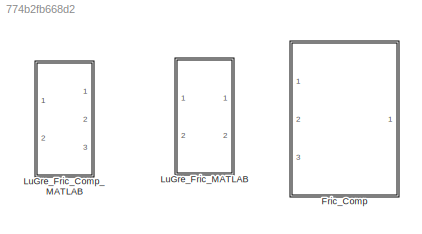
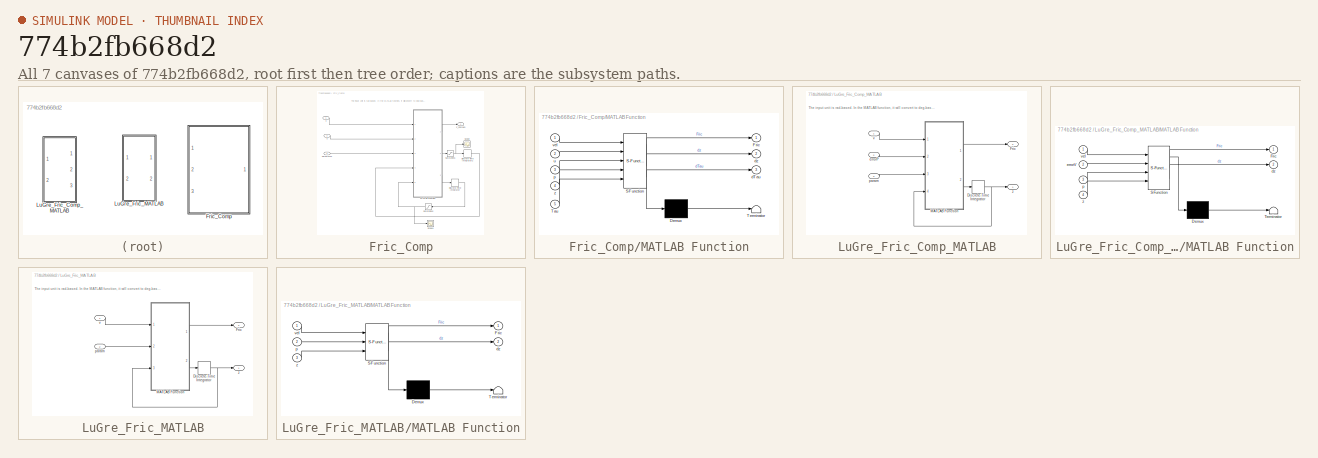
[diagram: thumbnail index - all 7 canvases of the model, root first then tree order]
MODEL slx_774b2fb668d2
KIND library
BLOCK [SubSystem] Fric_Comp
  Ports = [3, 1]
  RequestExecContextInheritance = off
BLOCK [DiscreteIntegrator] Fric_Comp/Discrete-Time Integrator
  Ports = [1, 1]
  SampleTime = Ts
BLOCK [DiscreteIntegrator] Fric_Comp/Discrete-Time Integrator2
  InitialConditionSetting = State (most efficient)
  Ports = [1, 1]
  SampleTime = Ts
BLOCK [Outport] Fric_Comp/F_Compen
  IconDisplay = Port number
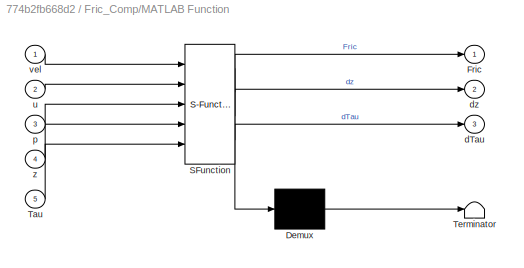
BLOCK [SubSystem] Fric_Comp/MATLAB Function
  ErrorFcn = Stateflow.Translate.translate
  PermitHierarchicalResolution = ExplicitOnly
  Ports = [5, 3]
  RequestExecContextInheritance = off
  SFBlockType = MATLAB Function
  TreatAsAtomicUnit = on
BLOCK [Demux] Fric_Comp/MATLAB Function/ Demux 
  Outputs = 1
  Ports = [1, 1]
BLOCK [S-Function] Fric_Comp/MATLAB Function/ SFunction 
  EnableBusSupport = off
  FunctionName = sf_sfun
  PortCounts = [5 4]
  Ports = [5, 4]
  Tag = Stateflow S-Function Friction_Compensator_Lib 2
BLOCK [Terminator] Fric_Comp/MATLAB Function/ Terminator 
BLOCK [Outport] Fric_Comp/MATLAB Function/Fric
  IconDisplay = Port number
BLOCK [Inport] Fric_Comp/MATLAB Function/Tau
  IconDisplay = Port number
  Port = 5
BLOCK [Outport] Fric_Comp/MATLAB Function/dTau
  IconDisplay = Port number
  Port = 3
BLOCK [Outport] Fric_Comp/MATLAB Function/dz
  IconDisplay = Port number
  Port = 2
BLOCK [Inport] Fric_Comp/MATLAB Function/p
  IconDisplay = Port number
  Port = 3
BLOCK [Inport] Fric_Comp/MATLAB Function/u
  IconDisplay = Port number
  Port = 2
BLOCK [Inport] Fric_Comp/MATLAB Function/vel
  IconDisplay = Port number
BLOCK [Inport] Fric_Comp/MATLAB Function/z
  IconDisplay = Port number
  Port = 4
BLOCK [Saturate] Fric_Comp/Saturation1
  InputPortMap = u0
  LowerLimit = -100
  Ports = [1, 1]
  UpperLimit = 100
BLOCK [Saturate] Fric_Comp/Saturation2
  InputPortMap = u0
  LowerLimit = -10
  Ports = [1, 1]
  UpperLimit = 10
BLOCK [Scope] Fric_Comp/Scope
  Floating = off
  NumInputPorts = 1
  Ports = [1]
  SaveName = ScopeData23
  ShowLegends = off
  YMax = 6
  YMin = -6
BLOCK [Scope] Fric_Comp/Scope1
  Floating = off
  NumInputPorts = 1
  Ports = [1]
  SaveName = ScopeData24
  ShowLegends = off
BLOCK [Inport] Fric_Comp/paramSync
  IconDisplay = Port number
  Port = 3
BLOCK [Inport] Fric_Comp/u
  IconDisplay = Port number
  Port = 2
BLOCK [Inport] Fric_Comp/v
  IconDisplay = Port number
BLOCK [SubSystem] LuGre_Fric_Comp_MATLAB
  Ports = [3, 2]
  RequestExecContextInheritance = off
BLOCK [DiscreteIntegrator] LuGre_Fric_Comp_MATLAB/Discrete-Time Integrator
  InitialConditionSetting = State (most efficient)
  Ports = [1, 1]
  SampleTime = Ts
BLOCK [Outport] LuGre_Fric_Comp_MATLAB/Fric
  IconDisplay = Port number
  Port = 2
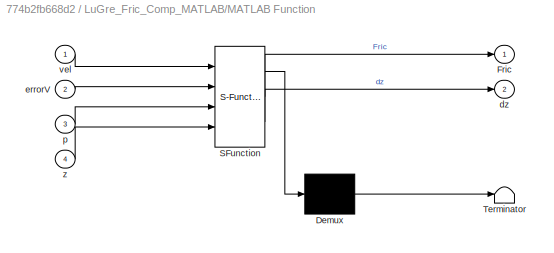
BLOCK [SubSystem] LuGre_Fric_Comp_MATLAB/MATLAB Function
  ErrorFcn = Stateflow.Translate.translate
  PermitHierarchicalResolution = ExplicitOnly
  Ports = [4, 2]
  RequestExecContextInheritance = off
  SFBlockType = MATLAB Function
  TreatAsAtomicUnit = on
BLOCK [Demux] LuGre_Fric_Comp_MATLAB/MATLAB Function/ Demux 
  Outputs = 1
  Ports = [1, 1]
BLOCK [S-Function] LuGre_Fric_Comp_MATLAB/MATLAB Function/ SFunction 
  EnableBusSupport = off
  FunctionName = sf_sfun
  PortCounts = [4 3]
  Ports = [4, 3]
  Tag = Stateflow S-Function Friction_Compensator_Lib 5
BLOCK [Terminator] LuGre_Fric_Comp_MATLAB/MATLAB Function/ Terminator 
BLOCK [Outport] LuGre_Fric_Comp_MATLAB/MATLAB Function/Fric
  IconDisplay = Port number
BLOCK [Outport] LuGre_Fric_Comp_MATLAB/MATLAB Function/dz
  IconDisplay = Port number
  Port = 2
BLOCK [Inport] LuGre_Fric_Comp_MATLAB/MATLAB Function/errorV
  IconDisplay = Port number
  Port = 2
BLOCK [Inport] LuGre_Fric_Comp_MATLAB/MATLAB Function/p
  IconDisplay = Port number
  Port = 3
BLOCK [Inport] LuGre_Fric_Comp_MATLAB/MATLAB Function/vel
  IconDisplay = Port number
BLOCK [Inport] LuGre_Fric_Comp_MATLAB/MATLAB Function/z
  IconDisplay = Port number
  Port = 4
BLOCK [Inport] LuGre_Fric_Comp_MATLAB/errorP
  IconDisplay = Port number
  Port = 2
BLOCK [Inport] LuGre_Fric_Comp_MATLAB/param
  IconDisplay = Port number
  Port = 3
BLOCK [Inport] LuGre_Fric_Comp_MATLAB/v
  IconDisplay = Port number
BLOCK [Outport] LuGre_Fric_Comp_MATLAB/z
  IconDisplay = Port number
BLOCK [SubSystem] LuGre_Fric_MATLAB
  Ports = [2, 2]
  RequestExecContextInheritance = off
BLOCK [DiscreteIntegrator] LuGre_Fric_MATLAB/Discrete-Time Integrator
  InitialConditionSetting = State (most efficient)
  Ports = [1, 1]
  SampleTime = Ts
BLOCK [Outport] LuGre_Fric_MATLAB/Fric
  IconDisplay = Port number
  Port = 2
BLOCK [SubSystem] LuGre_Fric_MATLAB/MATLAB Function
  ErrorFcn = Stateflow.Translate.translate
  PermitHierarchicalResolution = ExplicitOnly
  Ports = [3, 2]
  RequestExecContextInheritance = off
  SFBlockType = MATLAB Function
  TreatAsAtomicUnit = on
BLOCK [Demux] LuGre_Fric_MATLAB/MATLAB Function/ Demux 
  Outputs = 1
  Ports = [1, 1]
BLOCK [S-Function] LuGre_Fric_MATLAB/MATLAB Function/ SFunction 
  EnableBusSupport = off
  FunctionName = sf_sfun
  PortCounts = [3 3]
  Ports = [3, 3]
  Tag = Stateflow S-Function Friction_Compensator_Lib 1
BLOCK [Terminator] LuGre_Fric_MATLAB/MATLAB Function/ Terminator 
BLOCK [Outport] LuGre_Fric_MATLAB/MATLAB Function/Fric
  IconDisplay = Port number
BLOCK [Outport] LuGre_Fric_MATLAB/MATLAB Function/dz
  IconDisplay = Port number
  Port = 2
BLOCK [Inport] LuGre_Fric_MATLAB/MATLAB Function/p
  IconDisplay = Port number
  Port = 2
BLOCK [Inport] LuGre_Fric_MATLAB/MATLAB Function/vel
  IconDisplay = Port number
BLOCK [Inport] LuGre_Fric_MATLAB/MATLAB Function/z
  IconDisplay = Port number
  Port = 3
BLOCK [Inport] LuGre_Fric_MATLAB/param
  IconDisplay = Port number
  Port = 2
BLOCK [Inport] LuGre_Fric_MATLAB/v
  IconDisplay = Port number
BLOCK [Outport] LuGre_Fric_MATLAB/z
  IconDisplay = Port number
ANNOTATION Fric_Comp: The input unit is rad-based. In the MATLAB function, it will convert to deg-based value
ANNOTATION LuGre_Fric_Comp_MATLAB: The input unit is rad-based. In the MATLAB function, it will convert to deg-based value
ANNOTATION LuGre_Fric_MATLAB: The input unit is rad-based. In the MATLAB function, it will convert to deg-based value
LINE Fric_Comp/Discrete-Time Integrator2:1 -> Fric_Comp/MATLAB Function:4
LINE Fric_Comp/Discrete-Time Integrator:1 -> Fric_Comp/Saturation2:1
LINE Fric_Comp/MATLAB Function:1 -> Fric_Comp/F_Compen:1
LINE Fric_Comp/MATLAB Function:2 -> Fric_Comp/Saturation1:1
LINE Fric_Comp/MATLAB Function:3 -> Fric_Comp/Discrete-Time Integrator:1
NET Fric_Comp/Saturation1:1 -> Fric_Comp/Discrete-Time Integrator2:1, Fric_Comp/Scope:1
NET Fric_Comp/Saturation2:1 -> Fric_Comp/MATLAB Function:5, Fric_Comp/Scope1:1
LINE Fric_Comp/paramSync:1 -> Fric_Comp/MATLAB Function:3
LINE Fric_Comp/u:1 -> Fric_Comp/MATLAB Function:2
LINE Fric_Comp/v:1 -> Fric_Comp/MATLAB Function:1
NET LuGre_Fric_Comp_MATLAB/Discrete-Time Integrator:1 -> LuGre_Fric_Comp_MATLAB/MATLAB Function:4, LuGre_Fric_Comp_MATLAB/z:1
LINE LuGre_Fric_Comp_MATLAB/MATLAB Function:1 -> LuGre_Fric_Comp_MATLAB/Fric:1
LINE LuGre_Fric_Comp_MATLAB/MATLAB Function:2 -> LuGre_Fric_Comp_MATLAB/Discrete-Time Integrator:1
LINE LuGre_Fric_Comp_MATLAB/errorP:1 -> LuGre_Fric_Comp_MATLAB/MATLAB Function:2
LINE LuGre_Fric_Comp_MATLAB/param:1 -> LuGre_Fric_Comp_MATLAB/MATLAB Function:3
LINE LuGre_Fric_Comp_MATLAB/v:1 -> LuGre_Fric_Comp_MATLAB/MATLAB Function:1
NET LuGre_Fric_MATLAB/Discrete-Time Integrator:1 -> LuGre_Fric_MATLAB/MATLAB Function:3, LuGre_Fric_MATLAB/z:1
LINE LuGre_Fric_MATLAB/MATLAB Function:1 -> LuGre_Fric_MATLAB/Fric:1
LINE LuGre_Fric_MATLAB/MATLAB Function:2 -> LuGre_Fric_MATLAB/Discrete-Time Integrator:1
LINE LuGre_Fric_MATLAB/param:1 -> LuGre_Fric_MATLAB/MATLAB Function:2
LINE LuGre_Fric_MATLAB/v:1 -> LuGre_Fric_MATLAB/MATLAB Function:1
note: NET lines group one-source signal fan-out (src -> all destinations, sorted); 1:1 wires keep LINE
CHART LuGre_Fric_MATLAB/MATLAB Function states=1 transitions=1
  STATE_LABEL 'eML_blk_kernel()'
  STATE_LABEL 'SCRIPT:\nfunction [Fric,dz] = LuGre_Fric_MATLAB(vel,p,z)\n%#codegen\n\n% J = p(1);\nalpha0 = p(2);\nalpha0v2 = p(3);\nalpha1 = p(4);\nalpha1v2 = p(5);\nalpha2 = p(6);\nalpha2v2 = p(7);\nalpha3 = p(8); \nalpha3v2 = p(9);\nv0 = p(10);\nv0v2 = p(11);\nsigma0 = p(12);\nsigma1 = p(13);\nfConst = p(14);\n\nx2 = vel*180/pi;\ng = (alpha0+alpha1*exp(-(x2/v0).^2))*(x2>=0)+(alpha0v2+alpha1v2*exp(-(x2/v0v2).^2))*(x2<0);\ndz = x2-...<+151ch>'
CHART Fric_Comp/MATLAB Function states=1 transitions=1
  STATE_LABEL 'eML_blk_kernel()'
  STATE_LABEL 'SCRIPT:\nfunction [Fric,dz,dTau] = LuGre_Fric_MATLAB(vel,u,p,z,Tau)\n%#codegen\n\nJ = p(1);\nalpha0 = p(2);\nalpha0v2 = p(3);\nalpha1 = p(4);\nalpha1v2 = p(5);\nalpha2 = p(6);\nalpha2v2 = p(7);\nalpha3 = p(8); \nalpha3v2 = p(9);\nv0 = p(10);\nv0v2 = p(11);\nsigma0 = p(12);\nsigma1 = p(13);\nfConst = p(14);\n\nL = 4;\nu_J = u/(J*180/pi);\ndTau = u_J + L*(vel-Tau);\n% dTau = u_J;\n\nx2 = Tau*180/pi;\n% x2 = vel*180/pi;\ng = ...<+248ch>'
CHART LuGre_Fric_Comp_MATLAB/MATLAB Function states=1 transitions=1
  STATE_LABEL 'eML_blk_kernel()'
  STATE_LABEL 'SCRIPT:\nfunction [Fric,dz] = LuGre_Fric_MATLAB(vel,errorV,p,z)\n%#codegen\n\n% J = p(1);\nalpha0 = p(2);\nalpha0v2 = p(3);\nalpha1 = p(4);\nalpha1v2 = p(5);\nalpha2 = p(6);\nalpha2v2 = p(7);\nalpha3 = p(8); \nalpha3v2 = p(9);\nv0 = p(10);\nv0v2 = p(11);\nsigma0 = p(12);\nsigma1 = p(13);\nfConst = p(14);\n\n% x2 = vel*180/pi;\nx2 = (vel+errorV)*180/pi;\ng = (alpha0+alpha1*exp(-(x2/v0).^2))*(x2>=0)+(alpha0v2+alpha1v2*e...<+188ch>'
